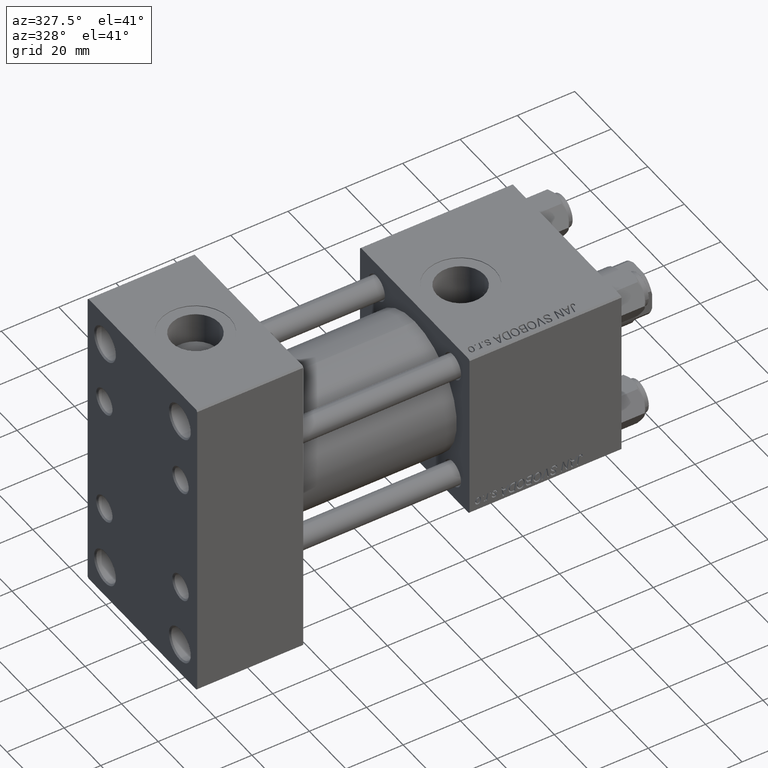
[diagram: clean part render]
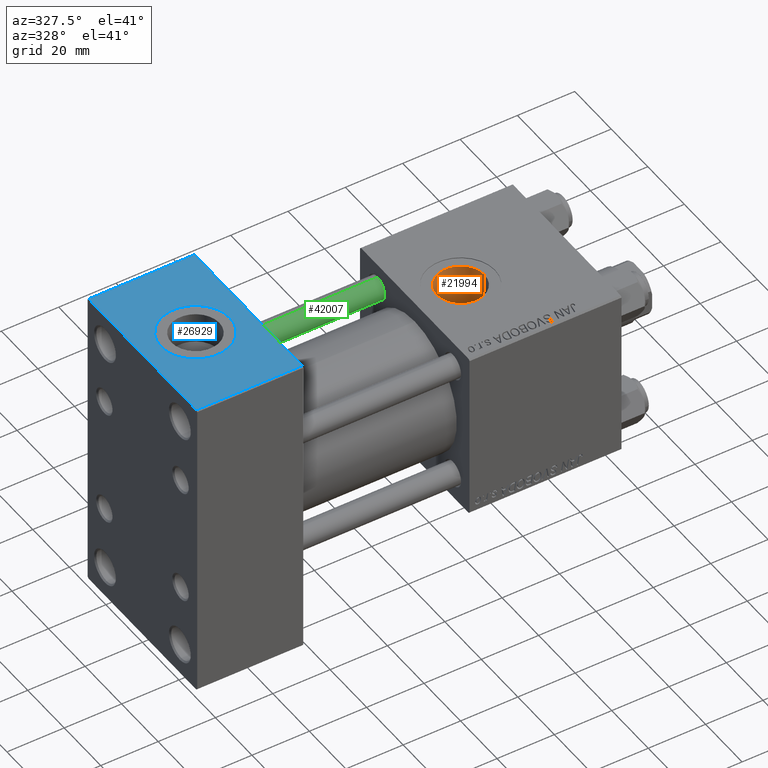
[diagram: same view with three faces highlighted in distinct colors, each labeled with its STEP entity id]
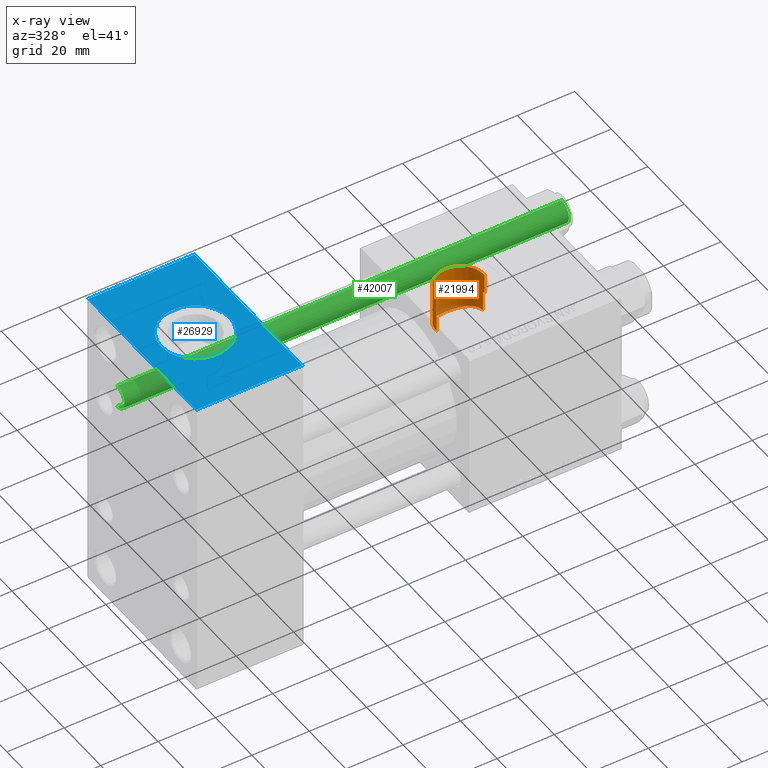
[diagram: x-ray of the same camera — body ghosted, the three highlighted faces saturated]
A machine part, auxiliary view with three faces highlighted in distinct colors.
The next image is the same camera in x-ray (body ghosted, the three faces saturated) — at least one of them is partly hidden behind the body in this view.
Their STEP definitions:

[orange] entity #21994 — the highlighted cylindrical surface (edge-blend (fillet) strip) has radius 8.33 mm, axis along (0, 0, 1).
#222 = CARTESIAN_POINT ( 'NONE',  ( 110.3883139045844075, 8.311878257887798327, 13.08292216006755915 ) ) ;
#2038 = CARTESIAN_POINT ( 'NONE',  ( 103.0868517190840805, 2.655488600773495023, 15.27904856166878922 ) ) ;
#2974 = VECTOR ( 'NONE', #26502, 1000.000000000000000 ) ;
#3835 = LINE ( 'NONE', #4354, #24127 ) ;
#3906 = CARTESIAN_POINT ( 'NONE',  ( 113.3226885743375334, 8.004083164222317137, 13.27368299574001398 ) ) ;
#4174 = CARTESIAN_POINT ( 'NONE',  ( 117.2493350041374498, 5.513878949387189365, 14.48754643870556968 ) ) ;
#4354 = CARTESIAN_POINT ( 'NONE',  ( 102.6700000000000017, -2.449316168263869032E-15, -23.56079794913576819 ) ) ;
#4430 = CARTESIAN_POINT ( 'NONE',  ( 114.3193855547532820, 7.658212580014170712, 13.47756053925516007 ) ) ;
#4695 = CARTESIAN_POINT ( 'NONE',  ( 118.8491258789661345, 2.802091215934997326, 15.24672985051142682 ) ) ;
#5219 = CARTESIAN_POINT ( 'NONE',  ( 107.0592140932513416, 7.358164796621692538, 13.64446967569029745 ) ) ;
#5994 = CARTESIAN_POINT ( 'NONE',  ( 103.7370422418973135, 4.112566756246520683, 14.95151444490773507 ) ) ;
#7149 = VERTEX_POINT ( 'NONE', #43442 ) ;
#7507 = VERTEX_POINT ( 'NONE', #15217 ) ;
#7864 = CARTESIAN_POINT ( 'NONE',  ( 113.5758055966574886, 7.926129927251746032, 13.32055475116626120 ) ) ;
#8387 = CARTESIAN_POINT ( 'NONE',  ( 109.5800126393434226, 8.212586102782980291, 13.14554677668086313 ) ) ;
#8517 = CARTESIAN_POINT ( 'NONE',  ( 102.6700000000000017, -2.449316168263869821E-15, 29.79999999999999716 ) ) ;
#8903 = CARTESIAN_POINT ( 'NONE',  ( 116.1223761457300441, 6.589288648760236455, 14.03465761673832723 ) ) ;
#9169 = CARTESIAN_POINT ( 'NONE',  ( 102.6700000000000017, 1.898100845048941388E-15, 15.50000000000000000 ) ) ;
#9251 = CYLINDRICAL_SURFACE ( 'NONE', #17661, 8.330000000000003624 ) ;
#9428 = CARTESIAN_POINT ( 'NONE',  ( 102.6830689054504546, 0.5397750835096128963, 15.49296437165992835 ) ) ;
#9717 = LINE ( 'NONE', #41823, #17144 ) ;
#10201 = CARTESIAN_POINT ( 'NONE',  ( 105.9674296848606758, 6.643042862437798846, 14.00528882879480363 ) ) ;
#10440 = CARTESIAN_POINT ( 'NONE',  ( 119.2999999999999829, 0.7063285354565354002, -23.56079794913576819 ) ) ;
#10832 = ORIENTED_EDGE ( 'NONE', *, *, #37956, .T. ) ;
#11548 = VERTEX_POINT ( 'NONE', #34598 ) ;
#12853 = CARTESIAN_POINT ( 'NONE',  ( 117.9019425821535805, 4.693185279177803260, 14.77889678387125372 ) ) ;
#13411 = DIRECTION ( 'NONE',  ( -0.000000000000000000, -0.000000000000000000, 1.000000000000000000 ) ) ;
#14717 = EDGE_CURVE ( 'NONE', #11548, #46771, #16550, .T. ) ;
#15169 = DIRECTION ( 'NONE',  ( -0.000000000000000000, -0.000000000000000000, 1.000000000000000000 ) ) ;
#15174 = ORIENTED_EDGE ( 'NONE', *, *, #40537, .F. ) ;
#15217 = CARTESIAN_POINT ( 'NONE',  ( 119.3300000000000125, -3.469446951953613794E-15, 29.79999999999999716 ) ) ;
#16027 = CARTESIAN_POINT ( 'NONE',  ( 118.6531198785858550, 3.300037631644535896, 15.14675668077579829 ) ) ;
#16035 = CARTESIAN_POINT ( 'NONE',  ( 119.3300000000000125, 2.755455270027974659E-15, 22.50000000000000355 ) ) ;
#16550 = B_SPLINE_CURVE_WITH_KNOTS ( 'NONE', 3,
 ( #17073, #33127, #40234, #44977, #4695, #16027, #49201, #27870, #12853, #24973, #4174, #40489, #28904, #8903, #43931, #36019, #4430, #7864, #3906, #28373, #19972, #52100, #20241, #222, #48407, #8387, #24456, #29428, #17590, #5219, #21284, #10201, #17844, #22306, #21545, #29159, #18352, #5994, #42307, #2038, #18099, #45488, #29681, #9428, #49968, #9169 ),
 .UNSPECIFIED., .F., .F.,
 ( 4, 2, 2, 2, 2, 2, 2, 2, 2, 2, 2, 2, 2, 2, 2, 2, 2, 2, 2, 2, 2, 2, 4 ),
 ( 0.000000000000000000, 0.001616601094056644913, 0.002424901641084966069, 0.003233202188113287658, 0.004849803282169931271, 0.005658103829198240717, 0.006466404376226550163, 0.008083005470283200281, 0.009699606564339848663, 0.01050790711136817372, 0.01131620765839649878, 0.01293280875245319053, 0.01374110929948153467, 0.01454940984650988055, 0.01616601094056653240, 0.01778261203462318252, 0.01859091258165148849, 0.01939921312867979794, 0.02101581422273641336, 0.02263241531679302879, 0.02424901641084964768, 0.02505731695787796406, 0.02586561750490627698 ),
 .UNSPECIFIED. ) ;
#16617 = FACE_OUTER_BOUND ( 'NONE', #24063, .T. ) ;
#17073 = CARTESIAN_POINT ( 'NONE',  ( 119.2999999999999545, 0.7063285354568809016, 15.48389808801386103 ) ) ;
#17144 = VECTOR ( 'NONE', #13411, 1000.000000000000000 ) ;
#17590 = CARTESIAN_POINT ( 'NONE',  ( 108.0280831876511769, 7.800005974199663683, 13.39679247833317888 ) ) ;
#17661 = AXIS2_PLACEMENT_3D ( 'NONE', #21359, #41354, #48752 ) ;
#17844 = CARTESIAN_POINT ( 'NONE',  ( 105.7620717625424760, 6.482401235301940901, 14.08060569368233672 ) ) ;
#18099 = CARTESIAN_POINT ( 'NONE',  ( 102.9331782841941987, 2.146294661946243298, 15.35990957131595636 ) ) ;
#18352 = CARTESIAN_POINT ( 'NONE',  ( 104.3099837884075356, 4.990735798376642052, 14.68174191680505558 ) ) ;
#18432 = DIRECTION ( 'NONE',  ( 0.000000000000000000, 0.000000000000000000, 1.000000000000000000 ) ) ;
#19972 = CARTESIAN_POINT ( 'NONE',  ( 112.5393180270791476, 8.191046880170263833, 13.15899482924553965 ) ) ;
#20241 = CARTESIAN_POINT ( 'NONE',  ( 111.1958509774288615, 8.345110101594274354, 13.06176967618121409 ) ) ;
#20806 = VERTEX_POINT ( 'NONE', #8517 ) ;
#21284 = CARTESIAN_POINT ( 'NONE',  ( 106.6049117619710103, 7.095324458822738656, 13.78473450686058221 ) ) ;
#21359 = CARTESIAN_POINT ( 'NONE',  ( 111.0000000000000000, -3.469446951953613794E-15, -23.56079794913576819 ) ) ;
#21545 = CARTESIAN_POINT ( 'NONE',  ( 105.1746853513074740, 5.960066042193969515, 14.30973504695705856 ) ) ;
#21994 = ADVANCED_FACE ( 'NONE', ( #16617 ), #9251, .F. ) ;
#22306 = CARTESIAN_POINT ( 'NONE',  ( 105.3654057549136951, 6.140746346287149215, 14.23292720374008447 ) ) ;
#22378 = CARTESIAN_POINT ( 'NONE',  ( 111.0000000000000000, -3.469446951953613794E-15, 29.79999999999999716 ) ) ;
#23422 = AXIS2_PLACEMENT_3D ( 'NONE', #22378, #18432, #31308 ) ;
#24063 = EDGE_LOOP ( 'NONE', ( #15174, #34297, #24851, #46011, #10832, #41492 ) ) ;
#24127 = VECTOR ( 'NONE', #15169, 1000.000000000000000 ) ;
#24456 = CARTESIAN_POINT ( 'NONE',  ( 109.3130088921946879, 8.161798413422928888, 13.17727064419120708 ) ) ;
#24851 = ORIENTED_EDGE ( 'NONE', *, *, #40020, .T. ) ;
#24862 = CARTESIAN_POINT ( 'NONE',  ( 102.6700000000000017, 1.898100845048941388E-15, 15.50000000000000000 ) ) ;
#24973 = CARTESIAN_POINT ( 'NONE',  ( 117.4206836242460241, 5.313397845573788025, 14.56247739527532481 ) ) ;
#25204 = EDGE_CURVE ( 'NONE', #7149, #37673, #26292, .T. ) ;
#26292 = B_SPLINE_CURVE_WITH_KNOTS ( 'NONE', 3,
 ( #16035, #48413, #47906, #27875 ),
 .UNSPECIFIED., .F., .F.,
 ( 4, 4 ),
 ( 0.0007063285354565450877, 0.001412657070913077599 ),
 .UNSPECIFIED. ) ;
#26502 = DIRECTION ( 'NONE',  ( -0.000000000000000000, -0.000000000000000000, 1.000000000000000000 ) ) ;
#27870 = CARTESIAN_POINT ( 'NONE',  ( 118.1826768078772147, 4.251812843369899397, 14.91336181654766690 ) ) ;
#27875 = CARTESIAN_POINT ( 'NONE',  ( 119.2999999999999829, 0.7063285354565354002, 22.48891060056044466 ) ) ;
#28373 = CARTESIAN_POINT ( 'NONE',  ( 112.8051925787937790, 8.136430990711653877, 13.19297154944904094 ) ) ;
#28904 = CARTESIAN_POINT ( 'NONE',  ( 116.7052856138598713, 6.075010833985373893, 14.26111244594537553 ) ) ;
#29159 = CARTESIAN_POINT ( 'NONE',  ( 104.6334646112960343, 5.396965728881641944, 14.53569325099344312 ) ) ;
#29428 = CARTESIAN_POINT ( 'NONE',  ( 108.5303836912680850, 7.973572890763231946, 13.29262183476802051 ) ) ;
#29681 = CARTESIAN_POINT ( 'NONE',  ( 102.7359107352509255, 1.080522372059885994, 15.46466209025531846 ) ) ;
#31308 = DIRECTION ( 'NONE',  ( 1.000000000000000000, 0.000000000000000000, 0.000000000000000000 ) ) ;
#32640 = CIRCLE ( 'NONE', #23422, 8.330000000000003624 ) ;
#33127 = CARTESIAN_POINT ( 'NONE',  ( 119.2536282029344932, 1.251239149034830689, 15.45904091616633025 ) ) ;
#34297 = ORIENTED_EDGE ( 'NONE', *, *, #14717, .F. ) ;
#34598 = CARTESIAN_POINT ( 'NONE',  ( 119.2999999999999545, 0.7063285354568809016, 15.48389808801386103 ) ) ;
#36019 = CARTESIAN_POINT ( 'NONE',  ( 114.7954698068906509, 7.433815927027508152, 13.60442864644455874 ) ) ;
#36233 = CARTESIAN_POINT ( 'NONE',  ( 119.2999999999999829, 0.7063285354565354002, 22.48891060056044466 ) ) ;
#37673 = VERTEX_POINT ( 'NONE', #36233 ) ;
#37956 = EDGE_CURVE ( 'NONE', #7149, #7507, #9717, .T. ) ;
#40020 = EDGE_CURVE ( 'NONE', #11548, #37673, #46509, .T. ) ;
#40234 = CARTESIAN_POINT ( 'NONE',  ( 119.1551794102610558, 1.779571906496707934, 15.40624408871749829 ) ) ;
#40489 = CARTESIAN_POINT ( 'NONE',  ( 116.8918120434205576, 5.894370187512599557, 14.33695445255749945 ) ) ;
#40537 = EDGE_CURVE ( 'NONE', #46771, #20806, #3835, .T. ) ;
#41354 = DIRECTION ( 'NONE',  ( -0.000000000000000000, -0.000000000000000000, 1.000000000000000000 ) ) ;
#41492 = ORIENTED_EDGE ( 'NONE', *, *, #44570, .T. ) ;
#41823 = CARTESIAN_POINT ( 'NONE',  ( 119.3300000000000125, -3.469446951953613794E-15, -23.56079794913576819 ) ) ;
#42307 = CARTESIAN_POINT ( 'NONE',  ( 103.4869951611570968, 3.636522200691656881, 15.07569736173248032 ) ) ;
#43442 = CARTESIAN_POINT ( 'NONE',  ( 119.3300000000000125, 2.755455270027974659E-15, 22.50000000000000355 ) ) ;
#43931 = CARTESIAN_POINT ( 'NONE',  ( 115.7029727236499497, 6.895596990293968886, 13.88498614261382258 ) ) ;
#44570 = EDGE_CURVE ( 'NONE', #7507, #20806, #32640, .T. ) ;
#44977 = CARTESIAN_POINT ( 'NONE',  ( 118.9348013750804682, 2.549325201696787779, 15.29111667893739579 ) ) ;
#45488 = CARTESIAN_POINT ( 'NONE',  ( 102.7760409420187102, 1.352117138147099329, 15.44320659540804463 ) ) ;
#46011 = ORIENTED_EDGE ( 'NONE', *, *, #25204, .F. ) ;
#46509 = LINE ( 'NONE', #10440, #2974 ) ;
#46771 = VERTEX_POINT ( 'NONE', #24862 ) ;
#47906 = CARTESIAN_POINT ( 'NONE',  ( 119.3200361445783102, 0.4708856903043582287, 22.49630535626710781 ) ) ;
#48407 = CARTESIAN_POINT ( 'NONE',  ( 110.1189832292043604, 8.287746620742304060, 13.09829097645579488 ) ) ;
#48413 = CARTESIAN_POINT ( 'NONE',  ( 119.3300000000000125, 0.2354428451521801968, 22.50000000000000355 ) ) ;
#48752 = DIRECTION ( 'NONE',  ( 1.000000000000000000, 0.000000000000000000, 0.000000000000000000 ) ) ;
#49201 = CARTESIAN_POINT ( 'NONE',  ( 118.5428030552849350, 3.544712500972452052, 15.09119218508022442 ) ) ;
#49968 = CARTESIAN_POINT ( 'NONE',  ( 102.6700000000000017, 0.2697275728529931471, 15.50000000000000178 ) ) ;
#52100 = CARTESIAN_POINT ( 'NONE',  ( 111.7336049828112010, 8.315414581110541548, 13.08103420916273230 ) ) ;

[blue] entity #26929 — the highlighted planar face has unit normal (0, 0, -1).
#61 = ORIENTED_EDGE ( 'NONE', *, *, #51335, .F. ) ;
#1652 = LINE ( 'NONE', #13757, #11005 ) ;
#2997 = CARTESIAN_POINT ( 'NONE',  ( 30.50000000000000000, -6.302828629382400950E-15, 54.50000000000000711 ) ) ;
#4195 = VECTOR ( 'NONE', #38727, 1000.000000000000000 ) ;
#6536 = CIRCLE ( 'NONE', #35941, 12.00000000000000000 ) ;
#6795 = DIRECTION ( 'NONE',  ( 0.000000000000000000, -1.000000000000000000, -1.156482317317871478E-16 ) ) ;
#7812 = ORIENTED_EDGE ( 'NONE', *, *, #25636, .F. ) ;
#9035 = CARTESIAN_POINT ( 'NONE',  ( 0.000000000000000000, -29.50000000000000711, 54.50000000000000711 ) ) ;
#9790 = CARTESIAN_POINT ( 'NONE',  ( 37.00000000000000000, -29.50000000000000711, 54.50000000000000711 ) ) ;
#9875 = EDGE_CURVE ( 'NONE', #35812, #16365, #22419, .T. ) ;
#10279 = VERTEX_POINT ( 'NONE', #14966 ) ;
#10953 = CARTESIAN_POINT ( 'NONE',  ( 6.499999999999997335, -4.833252470405576017E-15, 54.50000000000000711 ) ) ;
#11005 = VECTOR ( 'NONE', #29025, 1000.000000000000000 ) ;
#12540 = CARTESIAN_POINT ( 'NONE',  ( 18.50000000000000000, -6.302828629382400950E-15, 54.50000000000000711 ) ) ;
#13018 = VERTEX_POINT ( 'NONE', #2997 ) ;
#13594 = AXIS2_PLACEMENT_3D ( 'NONE', #12540, #29627, #17786 ) ;
#13757 = CARTESIAN_POINT ( 'NONE',  ( 0.000000000000000000, 29.50000000000000355, 54.50000000000001421 ) ) ;
#14572 = CARTESIAN_POINT ( 'NONE',  ( 37.00000000000000000, 30.00000000000000355, 54.50000000000001421 ) ) ;
#14966 = CARTESIAN_POINT ( 'NONE',  ( 37.00000000000000000, 29.50000000000000355, 54.50000000000001421 ) ) ;
#15783 = CARTESIAN_POINT ( 'NONE',  ( 0.000000000000000000, 29.50000000000000355, 54.50000000000001421 ) ) ;
#16365 = VERTEX_POINT ( 'NONE', #30831 ) ;
#17786 = DIRECTION ( 'NONE',  ( 1.000000000000000000, 0.000000000000000000, 0.000000000000000000 ) ) ;
#18525 = PLANE ( 'NONE',  #19525 ) ;
#18782 = DIRECTION ( 'NONE',  ( 0.000000000000000000, 1.000000000000000000, 1.156482317317871478E-16 ) ) ;
#19525 = AXIS2_PLACEMENT_3D ( 'NONE', #14572, #30619, #18782 ) ;
#21360 = LINE ( 'NONE', #51286, #34321 ) ;
#22419 = LINE ( 'NONE', #9790, #49228 ) ;
#23474 = EDGE_CURVE ( 'NONE', #10279, #29580, #1652, .T. ) ;
#24408 = DIRECTION ( 'NONE',  ( 0.000000000000000000, 0.000000000000000000, 1.000000000000000000 ) ) ;
#25636 = EDGE_CURVE ( 'NONE', #26616, #13018, #44703, .T. ) ;
#26616 = VERTEX_POINT ( 'NONE', #10953 ) ;
#26929 = ADVANCED_FACE ( 'NONE', ( #42477, #38784 ), #18525, .F. ) ;
#27403 = LINE ( 'NONE', #51112, #4195 ) ;
#29025 = DIRECTION ( 'NONE',  ( -1.000000000000000000, 0.000000000000000000, 0.000000000000000000 ) ) ;
#29580 = VERTEX_POINT ( 'NONE', #15783 ) ;
#29627 = DIRECTION ( 'NONE',  ( 0.000000000000000000, 0.000000000000000000, 1.000000000000000000 ) ) ;
#30409 = ORIENTED_EDGE ( 'NONE', *, *, #9875, .T. ) ;
#30619 = DIRECTION ( 'NONE',  ( 0.000000000000000000, 1.156482317317871478E-16, -1.000000000000000000 ) ) ;
#30831 = CARTESIAN_POINT ( 'NONE',  ( 37.00000000000000000, -29.50000000000000711, 54.50000000000000711 ) ) ;
#31667 = ORIENTED_EDGE ( 'NONE', *, *, #32826, .F. ) ;
#32826 = EDGE_CURVE ( 'NONE', #13018, #26616, #6536, .T. ) ;
#34321 = VECTOR ( 'NONE', #6795, 1000.000000000000000 ) ;
#35812 = VERTEX_POINT ( 'NONE', #9035 ) ;
#35941 = AXIS2_PLACEMENT_3D ( 'NONE', #36743, #24408, #49147 ) ;
#36743 = CARTESIAN_POINT ( 'NONE',  ( 18.50000000000000000, -6.302828629382400950E-15, 54.50000000000000711 ) ) ;
#38727 = DIRECTION ( 'NONE',  ( 0.000000000000000000, -1.000000000000000000, -1.156482317317871478E-16 ) ) ;
#38784 = FACE_OUTER_BOUND ( 'NONE', #41874, .T. ) ;
#41874 = EDGE_LOOP ( 'NONE', ( #43588, #30409, #61, #49118 ) ) ;
#42477 = FACE_BOUND ( 'NONE', #51436, .T. ) ;
#43588 = ORIENTED_EDGE ( 'NONE', *, *, #47153, .T. ) ;
#44703 = CIRCLE ( 'NONE', #13594, 12.00000000000000000 ) ;
#47153 = EDGE_CURVE ( 'NONE', #29580, #35812, #21360, .T. ) ;
#49118 = ORIENTED_EDGE ( 'NONE', *, *, #23474, .T. ) ;
#49147 = DIRECTION ( 'NONE',  ( 1.000000000000000000, 0.000000000000000000, 0.000000000000000000 ) ) ;
#49228 = VECTOR ( 'NONE', #50862, 1000.000000000000000 ) ;
#50862 = DIRECTION ( 'NONE',  ( 1.000000000000000000, 0.000000000000000000, 0.000000000000000000 ) ) ;
#51112 = CARTESIAN_POINT ( 'NONE',  ( 37.00000000000000000, 30.00000000000000355, 54.50000000000001421 ) ) ;
#51286 = CARTESIAN_POINT ( 'NONE',  ( 0.000000000000000000, 30.00000000000000355, 54.50000000000001421 ) ) ;
#51335 = EDGE_CURVE ( 'NONE', #10279, #16365, #27403, .T. ) ;
#51436 = EDGE_LOOP ( 'NONE', ( #31667, #7812 ) ) ;

[green] entity #42007 — the highlighted cylindrical surface (edge-blend (fillet) strip) has radius 4 mm, axis along (1, 0, 0).
#1512 = VERTEX_POINT ( 'NONE', #42153 ) ;
#1657 = DIRECTION ( 'NONE',  ( -0.000000000000000000, -0.000000000000000000, -1.000000000000000000 ) ) ;
#2424 = DIRECTION ( 'NONE',  ( -1.000000000000000000, 0.000000000000000000, 0.000000000000000000 ) ) ;
#3341 = DIRECTION ( 'NONE',  ( -0.000000000000000000, -0.000000000000000000, -1.000000000000000000 ) ) ;
#5272 = DIRECTION ( 'NONE',  ( 1.000000000000000000, 0.000000000000000000, 0.000000000000000000 ) ) ;
#6903 = FACE_OUTER_BOUND ( 'NONE', #37541, .T. ) ;
#7745 = CARTESIAN_POINT ( 'NONE',  ( 0.000000000000000000, 0.000000000000000000, 0.5000000000000281997 ) ) ;
#7809 = LINE ( 'NONE', #39402, #11938 ) ;
#7998 = DIRECTION ( 'NONE',  ( -0.000000000000000000, -0.000000000000000000, 1.000000000000000000 ) ) ;
#10134 = CARTESIAN_POINT ( 'NONE',  ( -4.000000000000000000, 0.000000000000000000, 0.5000000000000281997 ) ) ;
#11164 = ORIENTED_EDGE ( 'NONE', *, *, #41145, .T. ) ;
#11938 = VECTOR ( 'NONE', #3341, 1000.000000000000000 ) ;
#11951 = DIRECTION ( 'NONE',  ( 1.000000000000000000, 0.000000000000000000, 0.000000000000000000 ) ) ;
#16105 = AXIS2_PLACEMENT_3D ( 'NONE', #7745, #7998, #11951 ) ;
#18719 = DIRECTION ( 'NONE',  ( -0.000000000000000000, -0.000000000000000000, -1.000000000000000000 ) ) ;
#20513 = CARTESIAN_POINT ( 'NONE',  ( 4.000000000000000000, 4.898587196589412829E-16, 0.5000000000000281997 ) ) ;
#20565 = VERTEX_POINT ( 'NONE', #10134 ) ;
#20775 = AXIS2_PLACEMENT_3D ( 'NONE', #45285, #44763, #5272 ) ;
#22671 = CARTESIAN_POINT ( 'NONE',  ( 4.000000000000000000, 4.898587196589412829E-16, 156.0000000000000000 ) ) ;
#24883 = EDGE_CURVE ( 'NONE', #32562, #20565, #38801, .T. ) ;
#25563 = EDGE_CURVE ( 'NONE', #45718, #20565, #7809, .T. ) ;
#28209 = CARTESIAN_POINT ( 'NONE',  ( -4.000000000000000000, 0.000000000000000000, 155.5000000000000284 ) ) ;
#30272 = ORIENTED_EDGE ( 'NONE', *, *, #50336, .T. ) ;
#32562 = VERTEX_POINT ( 'NONE', #20513 ) ;
#34019 = CYLINDRICAL_SURFACE ( 'NONE', #34250, 4.000000000000000000 ) ;
#34250 = AXIS2_PLACEMENT_3D ( 'NONE', #38746, #1657, #2424 ) ;
#34957 = ORIENTED_EDGE ( 'NONE', *, *, #25563, .F. ) ;
#35289 = LINE ( 'NONE', #22671, #36121 ) ;
#36121 = VECTOR ( 'NONE', #18719, 1000.000000000000000 ) ;
#37541 = EDGE_LOOP ( 'NONE', ( #11164, #30272, #48554, #34957 ) ) ;
#38421 = CIRCLE ( 'NONE', #20775, 4.000000000000000000 ) ;
#38746 = CARTESIAN_POINT ( 'NONE',  ( 0.000000000000000000, 0.000000000000000000, 156.0000000000000000 ) ) ;
#38801 = CIRCLE ( 'NONE', #16105, 4.000000000000000000 ) ;
#39402 = CARTESIAN_POINT ( 'NONE',  ( -4.000000000000000000, 0.000000000000000000, 156.0000000000000000 ) ) ;
#41145 = EDGE_CURVE ( 'NONE', #45718, #1512, #38421, .T. ) ;
#42007 = ADVANCED_FACE ( 'NONE', ( #6903 ), #34019, .T. ) ;
#42153 = CARTESIAN_POINT ( 'NONE',  ( 4.000000000000000000, 4.898587196589412829E-16, 155.5000000000000284 ) ) ;
#44763 = DIRECTION ( 'NONE',  ( 0.000000000000000000, 0.000000000000000000, -1.000000000000000000 ) ) ;
#45285 = CARTESIAN_POINT ( 'NONE',  ( 0.000000000000000000, 0.000000000000000000, 155.5000000000000284 ) ) ;
#45718 = VERTEX_POINT ( 'NONE', #28209 ) ;
#48554 = ORIENTED_EDGE ( 'NONE', *, *, #24883, .T. ) ;
#50336 = EDGE_CURVE ( 'NONE', #1512, #32562, #35289, .T. ) ;